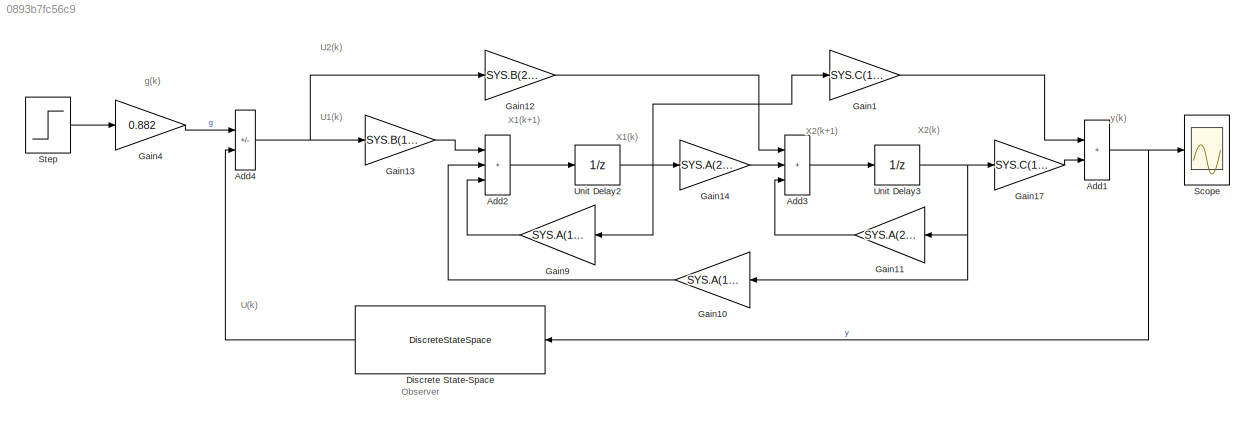
MODEL slx_0893b7fc56c9
KIND model
CONFIG AbsTol = auto
CONFIG EnableMultiTasking = off
CONFIG FixedStep = auto
CONFIG MaxStep = auto
CONFIG MinStep = auto
CONFIG RelTol = 1e-3
CONFIG SampleTimeConstraint = Unconstrained
CONFIG SolverName = VariableStepAuto
CONFIG StartTime = 0.0
CONFIG StopTime = 2.5
BLOCK [Sum] Add1
  IconShape = rectangular
  Ports = [2, 1]
BLOCK [Sum] Add2
  IconShape = rectangular
  Inputs = +++
  Ports = [3, 1]
BLOCK [Sum] Add3
  IconShape = rectangular
  Inputs = +++
  Ports = [3, 1]
BLOCK [Sum] Add4
  IconShape = rectangular
  Inputs = +-
  Ports = [2, 1]
BLOCK [DiscreteStateSpace] Discrete State-Space
  A = An
  B = Bn
  C = Cn
  D = Dn
  SampleTime = Ts
BLOCK [Gain] Gain1
  Gain = SYS.C(1,1)
BLOCK [Gain] Gain10
  Gain = SYS.A(1,2)
BLOCK [Gain] Gain11
  Gain = SYS.A(2,2)
BLOCK [Gain] Gain12
  Gain = SYS.B(2,1)
BLOCK [Gain] Gain13
  Gain = SYS.B(1,1)
BLOCK [Gain] Gain14
  Gain = SYS.A(2,1)
BLOCK [Gain] Gain17
  Gain = SYS.C(1,2)
BLOCK [Gain] Gain4
  Gain = 0.882
BLOCK [Gain] Gain9
  Gain = SYS.A(1,1)
BLOCK [Scope] Scope
  Floating = off
  NumInputPorts = 1
  Ports = [1]
  ScopeSpecificationString = Simulink.scopes.TimeScopeBlockCfg('CurrentConfiguration', extmgr.ConfigurationSet(extmgr.Configuration('Core','General UI',true,'FigureColor',[1 1 1]),extmgr.Configuration('Core','Source UI',true),extmgr.Configuration('Sources','WiredSimulink',true,'DataLoggingDecimateData',true,'DataLoggingDecimation','1','DataLoggingVariableName','ScopeData1'),extmgr.Configuration('Visuals','Time Domain',true,'S...<+1642ch>
BLOCK [Step] Step
  SampleTime = Ts
  Time = 0
  VectorParams1D = off
  ZeroCross = off
BLOCK [UnitDelay] Unit Delay2
  HasFrameUpgradeWarning = on
  SampleTime = Ts
BLOCK [UnitDelay] Unit Delay3
  HasFrameUpgradeWarning = on
  SampleTime = Ts
ANNOTATION (root): Observer
ANNOTATION (root): y(k)
ANNOTATION (root): U(k)
ANNOTATION (root): U1(k)
ANNOTATION (root): U2(k)
ANNOTATION (root): X1(k)
ANNOTATION (root): X1(k+1)
ANNOTATION (root): X2(k)
ANNOTATION (root): X2(k+1)
ANNOTATION (root): g(k)
NET Add1:1 -> Discrete State-Space:1, Scope:1
LINE Add2:1 -> Unit Delay2:1
LINE Add3:1 -> Unit Delay3:1
NET Add4:1 -> Gain12:1, Gain13:1
LINE Discrete State-Space:1 -> Add4:2
LINE Gain10:1 -> Add2:2
LINE Gain11:1 -> Add3:3
LINE Gain12:1 -> Add3:1
LINE Gain13:1 -> Add2:1
LINE Gain14:1 -> Add3:2
LINE Gain17:1 -> Add1:2
LINE Gain1:1 -> Add1:1
LINE Gain4:1 -> Add4:1
LINE Gain9:1 -> Add2:3
LINE Step:1 -> Gain4:1
NET Unit Delay2:1 -> Gain14:1, Gain1:1, Gain9:1
NET Unit Delay3:1 -> Gain10:1, Gain11:1, Gain17:1
note: NET lines group one-source signal fan-out (src -> all destinations, sorted); 1:1 wires keep LINE
